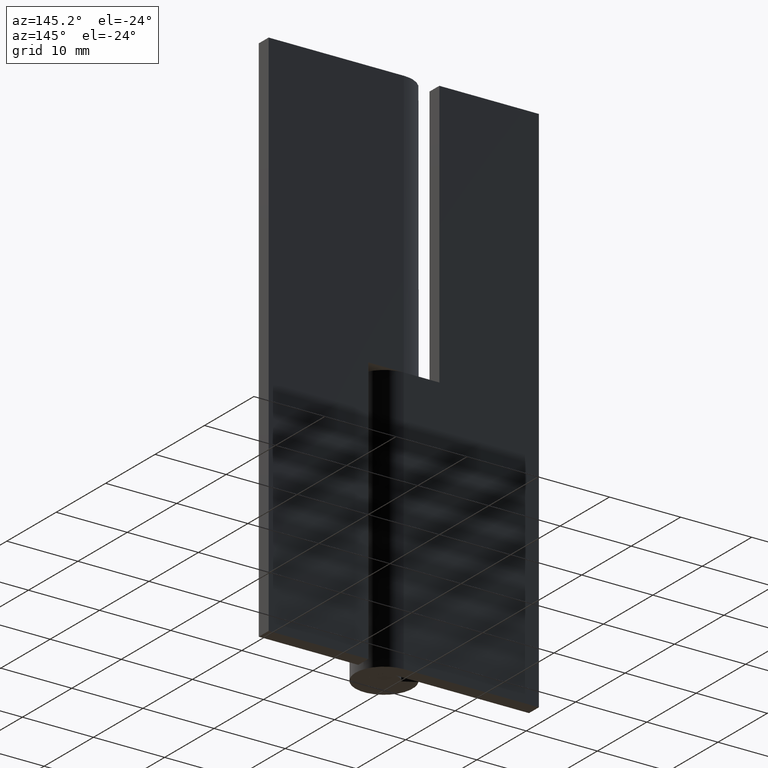
[diagram: clean part render]
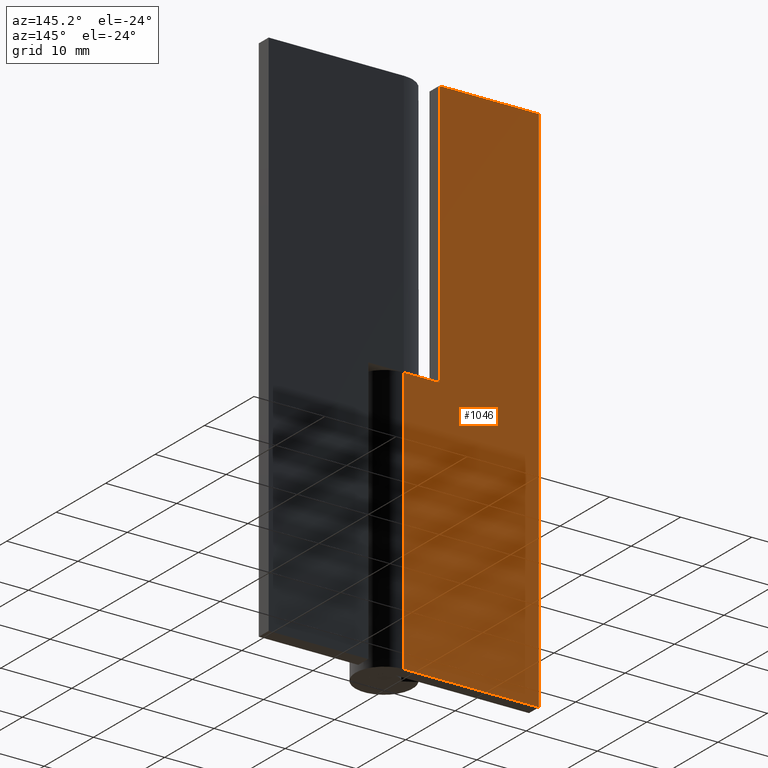
[diagram: same view with one face highlighted and labeled with its STEP entity id]
A machine part, auxiliary view. The second image highlights one B-rep face of the part: STEP entity #1046.
In plain terms, the highlighted face is a freeform B-spline surface patch.
Its self-contained STEP definition (entity closure, byte-faithful):
#706=CARTESIAN_POINT('',(-5.0,4.0,37.500000000000000));
#707=VERTEX_POINT('',#706);
#715=CARTESIAN_POINT('',(-5.0,4.0,75.0));
#716=VERTEX_POINT('',#715);
#717=CARTESIAN_POINT('',(-5.0,4.0,75.0));
#718=CARTESIAN_POINT('',(-5.0,4.0,37.500000000000000));
#719=QUASI_UNIFORM_CURVE('',1,(#717,#718),.UNSPECIFIED.,.F.,.U.);
#720=EDGE_CURVE('',#716,#707,#719,.T.);
#742=CARTESIAN_POINT('',(0.0,4.0,37.500000000000000));
#743=VERTEX_POINT('',#742);
#744=CARTESIAN_POINT('',(-5.0,4.0,37.500000000000000));
#745=CARTESIAN_POINT('',(0.0,4.0,37.500000000000000));
#746=QUASI_UNIFORM_CURVE('',1,(#744,#745),.UNSPECIFIED.,.F.,.U.);
#747=EDGE_CURVE('',#707,#743,#746,.T.);
#820=CARTESIAN_POINT('',(-19.0,4.0,75.0));
#821=VERTEX_POINT('',#820);
#822=CARTESIAN_POINT('',(-19.0,4.0,75.0));
#823=CARTESIAN_POINT('',(-5.0,4.0,75.0));
#824=QUASI_UNIFORM_CURVE('',1,(#822,#823),.UNSPECIFIED.,.F.,.U.);
#825=EDGE_CURVE('',#821,#716,#824,.T.);
#840=CARTESIAN_POINT('',(-19.0,4.0,0.0));
#841=VERTEX_POINT('',#840);
#842=CARTESIAN_POINT('',(-7.347638E-016,4.0,0.0));
#843=VERTEX_POINT('',#842);
#844=CARTESIAN_POINT('',(-19.0,4.0,0.0));
#845=CARTESIAN_POINT('',(-7.347638E-016,4.0,0.0));
#846=QUASI_UNIFORM_CURVE('',1,(#844,#845),.UNSPECIFIED.,.F.,.U.);
#847=EDGE_CURVE('',#841,#843,#846,.T.);
#919=CARTESIAN_POINT('',(-19.0,4.0,0.0));
#920=CARTESIAN_POINT('',(-19.0,4.0,75.0));
#921=QUASI_UNIFORM_CURVE('',1,(#919,#920),.UNSPECIFIED.,.F.,.U.);
#922=EDGE_CURVE('',#841,#821,#921,.T.);
#1022=CARTESIAN_POINT('',(-7.347638E-016,4.0,0.0));
#1023=CARTESIAN_POINT('',(0.0,4.0,37.500000000000000));
#1024=QUASI_UNIFORM_CURVE('',1,(#1022,#1023),.UNSPECIFIED.,.F.,.U.);
#1025=EDGE_CURVE('',#843,#743,#1024,.T.);
#1033=CARTESIAN_POINT('',(-19.949049963174311,4.0,78.746249854635451));
#1034=CARTESIAN_POINT('',(-19.949049963174311,4.0,-3.746251866292208));
#1035=CARTESIAN_POINT('',(0.949050472794027,4.0,78.746249854635451));
#1036=CARTESIAN_POINT('',(0.949050472794027,4.0,-3.746251866292208));
#1037=B_SPLINE_SURFACE_WITH_KNOTS('',1,1,((#1033,#1035),(#1034,#1036)),.UNSPECIFIED.,.F.,.F.,.U.,(2,2),(2,2),(0.0,82.492501720927663),(0.0,20.898100435968342),.UNSPECIFIED.);
#1038=ORIENTED_EDGE('',*,*,#825,.T.);
#1039=ORIENTED_EDGE('',*,*,#720,.T.);
#1040=ORIENTED_EDGE('',*,*,#747,.T.);
#1041=ORIENTED_EDGE('',*,*,#1025,.F.);
#1042=ORIENTED_EDGE('',*,*,#847,.F.);
#1043=ORIENTED_EDGE('',*,*,#922,.T.);
#1044=EDGE_LOOP('',(#1038,#1039,#1040,#1041,#1042,#1043));
#1045=FACE_OUTER_BOUND('',#1044,.T.);
#1046=ADVANCED_FACE('',(#1045),#1037,.F.);